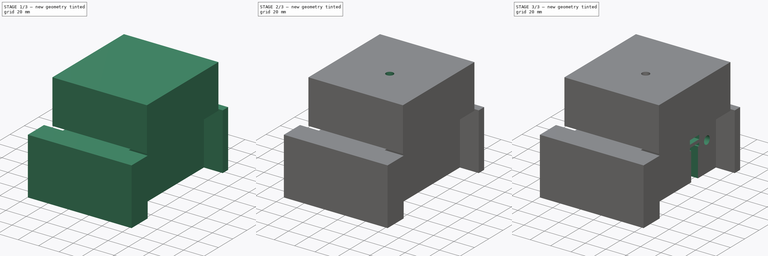
[diagram: build sequence overview — one tinted view per stage of 3, left to right]
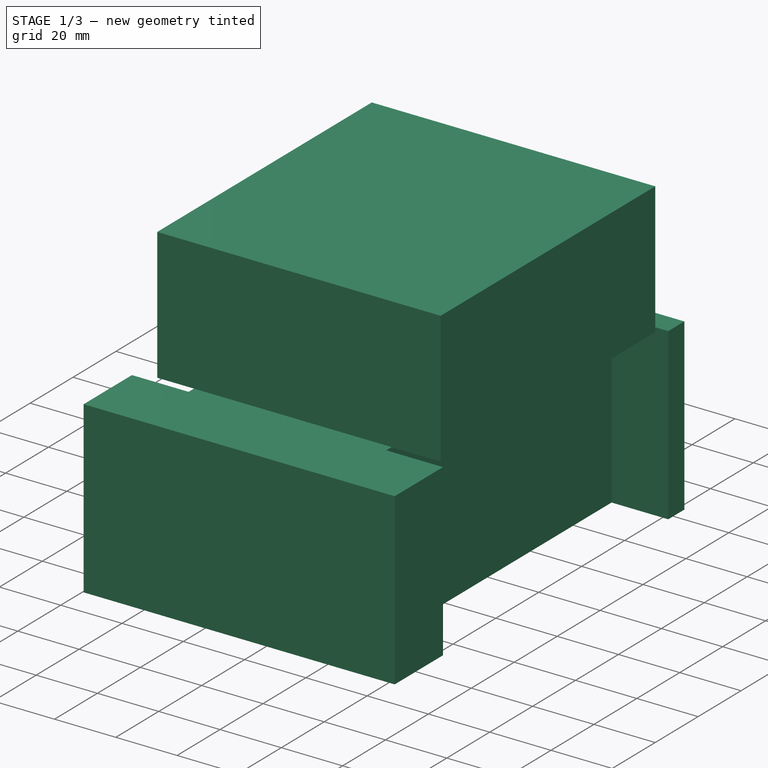
[diagram: stage 1 of 3 — iso view after this stage's code; geometry added in this stage tinted green]
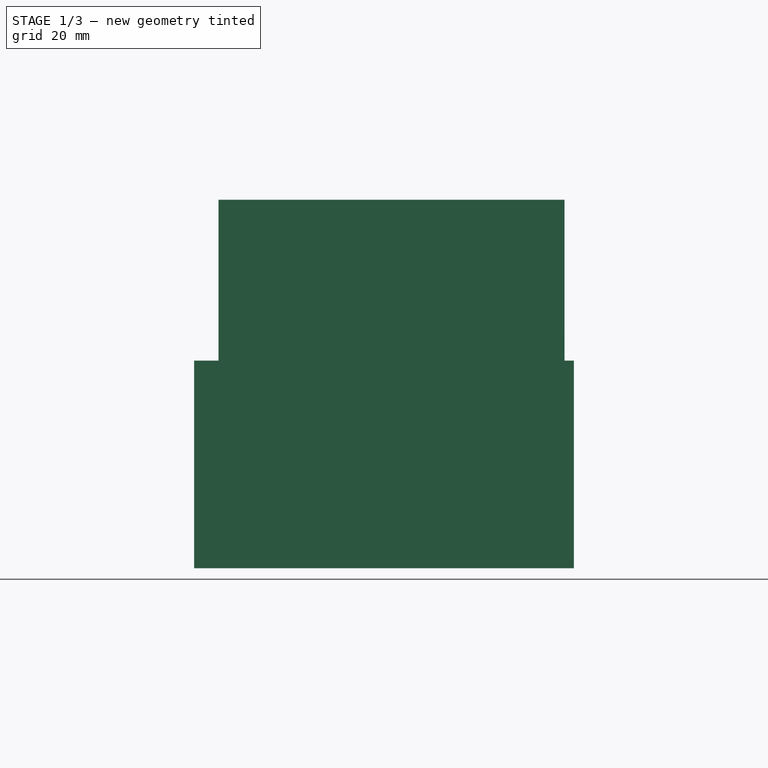
[diagram: stage 1 of 3 — front view after this stage's code; geometry added in this stage tinted green]
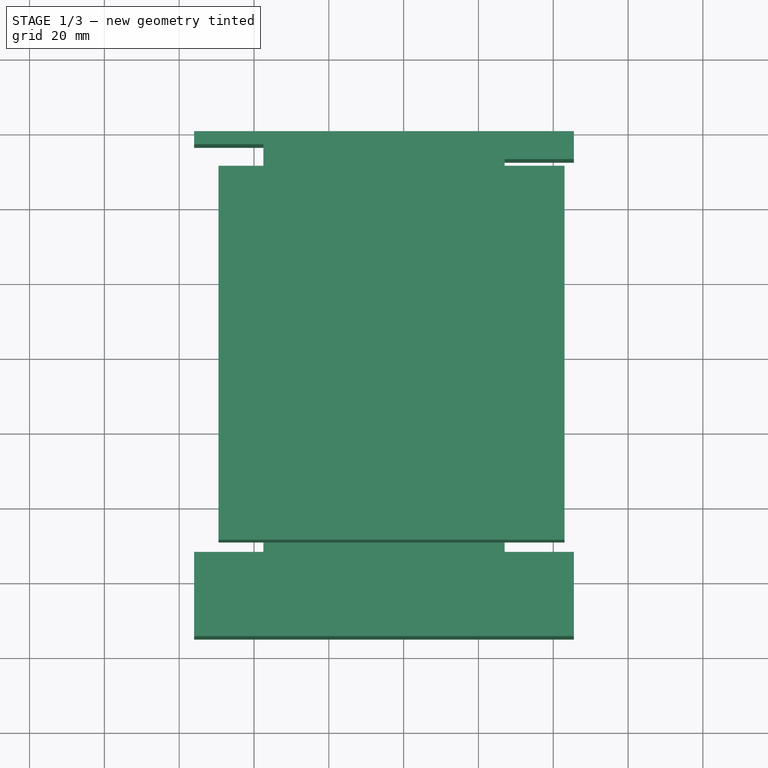
[diagram: stage 1 of 3 — top view after this stage's code; geometry added in this stage tinted green]
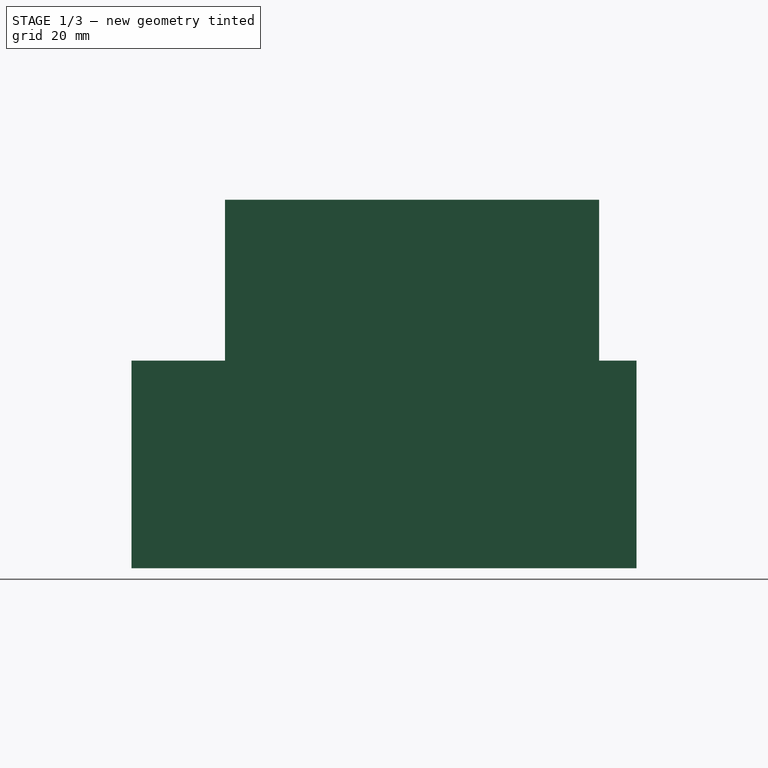
[diagram: stage 1 of 3 — right view after this stage's code; geometry added in this stage tinted green]
FCSTD DOCUMENT  (FreeCAD 0.20R29410 (Git))
Label: PrintHeadBoundaries
License: Creative Commons Attribution
LicenseURL: http://creativecommons.org/licenses/by/4.0/
objects: Sketcher::SketchObject×5, PartDesign::Pocket×3, PartDesign::Pad×2, PartDesign::Line×2, PartDesign::Plane×1, PartDesign::Body×1
note: 19 computed .brp shape members not serialized (recipe doc carries the construction recipe); baked Part::Feature solids carry a one-line shape summary decoded from their .brp

FEATURE [Sketcher::SketchObject] Sketch
  FullyConstrained = true
  MapMode = 5
  Placement = pos=(0,0,0) rot=(1,0,0;1.5708rad)
  Support = -> [XZ_Plane001]
  sketch-geometry (8):
    g0: LineSegment StartX=-37.5 StartY=-28.5 StartZ=0 EndX=27 EndY=-28.5 EndZ=0
    g1: LineSegment StartX=27 StartY=-28.5 StartZ=0 EndX=27 EndY=26.5 EndZ=0
    g2: LineSegment StartX=27 StartY=26.5 StartZ=0 EndX=43 EndY=26.5 EndZ=0
    g3: LineSegment StartX=43 StartY=26.5 StartZ=0 EndX=43 EndY=69.5 EndZ=0
    g4: LineSegment StartX=43 StartY=69.5 StartZ=0 EndX=-49.5 EndY=69.5 EndZ=0
    g5: LineSegment StartX=-49.5 StartY=69.5 StartZ=0 EndX=-49.5 EndY=26.5 EndZ=0
    g6: LineSegment StartX=-49.5 StartY=26.5 StartZ=0 EndX=-37.5 EndY=26.5 EndZ=0
    g7: LineSegment StartX=-37.5 StartY=26.5 StartZ=0 EndX=-37.5 EndY=-28.5 EndZ=0
  constraints (24):
    c: Horizontal(g0)
    c: Coincident(g0,g1)
    c: Vertical(g1)
    c: Coincident(g1,g2)
    c: Horizontal(g2)
    c: Coincident(g2,g3)
    c: Vertical(g3)
    c: Coincident(g3,g4)
    c: Horizontal(g4)
    c: Coincident(g4,g5)
    c: Vertical(g5)
    c: Coincident(g5,g6)
    c: Coincident(g6,g7)
    c: Coincident(g7,g0)
    c: Vertical(g7)
    c: DistanceY(g0,g-1) = 28.5
    c: Horizontal(g6)
    c: DistanceY(g0,g5) = 55
    c: Horizontal(g6,g1)
    c: DistanceY(g0,g3) = 98
    c: DistanceX(g0,g0) = 64.5
    c: DistanceX(g-1,g0) = 27
    c: DistanceX(g5,g0) = 12
    c: DistanceX(g0,g2) = 16
FEATURE [PartDesign::Pad] Pad
  Direction = (0,-1,-2e-16)
  Length = 100
  Length2 = 10
  Midplane = true
  Placement = pos=(0,0,0) rot=(1,0,0;1.5708rad)
  Profile = -> Sketch
  ReferenceAxis = -> Sketch [N_Axis]
  Type = 0
FEATURE [Sketcher::SketchObject] Sketch001
  AttachmentOffset = pos=(0,0,-28.5) rot=(0,0,1;0rad)
  ExternalGeometry = -> [Sketch]
  FullyConstrained = true
  MapMode = 5
  Placement = pos=(0,0,-28.5) rot=(0,0,1;0rad)
  Support = -> [XY_Plane001]
  sketch-geometry (1):
    g0: Circle CenterX=0 CenterY=-7 CenterZ=0 NormalX=0 NormalY=0 NormalZ=1 AngleXU=0 Radius=3.65
  constraints (3):
    c: DistanceY(g0,g-1) = 7
    c: Diameter(g0) = 7.3
    c: PointOnObject(g0,g-2)
FEATURE [Sketcher::SketchObject] Sketch002
  FullyConstrained = true
  MapMode = 5
  Placement = pos=(0,0,0) rot=(0.57735,0.57735,0.57735;2.0944rad)
  Support = -> [YZ_Plane001]
  sketch-geometry (6):
    g0: Circle CenterX=-40 CenterY=0 CenterZ=0 NormalX=0 NormalY=0 NormalZ=1 AngleXU=0 Radius=4
    g1: Circle CenterX=40 CenterY=0 CenterZ=0 NormalX=0 NormalY=0 NormalZ=1 AngleXU=0 Radius=4
    g2: LineSegment StartX=18 StartY=-0.8 StartZ=0 EndX=27.5 EndY=-0.8 EndZ=0
    g3: LineSegment StartX=27.5 StartY=-0.8 StartZ=0 EndX=27.5 EndY=-30.8 EndZ=0
    g4: LineSegment StartX=27.5 StartY=-30.8 StartZ=0 EndX=18 EndY=-30.8 EndZ=0
    g5: LineSegment StartX=18 StartY=-30.8 StartZ=0 EndX=18 EndY=-0.8 EndZ=0
  constraints (17):
    c: PointOnObject(g0,g-1)
    c: Symmetric(g0,g1,g-2)
    c: Equal(g0,g1)
    c: Diameter(g1) = 8
    c: DistanceX(g0,g1) = 80
    c: Coincident(g2,g3)
    c: Coincident(g3,g4)
    c: Coincident(g4,g5)
    c: Coincident(g5,g2)
    c: Horizontal(g2)
    c: Horizontal(g4)
    c: Vertical(g3)
    c: Vertical(g5)
    c: DistanceX(g-1,g2) = 18
    c: DistanceY(g2,g-1) = 0.8
    c: DistanceX(g2,g2) = 9.5
    c: DistanceY(g3,g3) = 30
FEATURE [Sketcher::SketchObject] Sketch003
  FullyConstrained = true
  MapMode = 5
  Support = -> [XY_Plane001]
  sketch-geometry (12):
    g0: LineSegment StartX=-56 StartY=-52.5 StartZ=0 EndX=-56 EndY=-75 EndZ=0
    g1: LineSegment StartX=-56 StartY=-75 StartZ=0 EndX=45.5 EndY=-75 EndZ=0
    g2: LineSegment StartX=45.5 StartY=-75 StartZ=0 EndX=45.5 EndY=-52.5 EndZ=0
    g3: LineSegment StartX=45.5 StartY=-52.5 StartZ=0 EndX=27 EndY=-52.5 EndZ=0
    g4: LineSegment StartX=27 StartY=-52.5 StartZ=0 EndX=27 EndY=52.5 EndZ=0
    g5: LineSegment StartX=27 StartY=52.5 StartZ=0 EndX=45.5 EndY=52.5 EndZ=0
    g6: LineSegment StartX=45.5 StartY=52.5 StartZ=0 EndX=45.5 EndY=60 EndZ=0
    g7: LineSegment StartX=45.5 StartY=60 StartZ=0 EndX=-56 EndY=60 EndZ=0
    g8: LineSegment StartX=-56 StartY=60 StartZ=0 EndX=-56 EndY=56.5 EndZ=0
    g9: LineSegment StartX=-56 StartY=56.5 StartZ=0 EndX=-37.5 EndY=56.5 EndZ=0
    g10: LineSegment StartX=-37.5 StartY=56.5 StartZ=0 EndX=-37.5 EndY=-52.5 EndZ=0
    g11: LineSegment StartX=-37.5 StartY=-52.5 StartZ=0 EndX=-56 EndY=-52.5 EndZ=0
  constraints (36):
    c: Vertical(g0)
    c: Coincident(g0,g1)
    c: Horizontal(g1)
    c: Coincident(g1,g2)
    c: Vertical(g2)
    c: Coincident(g2,g3)
    c: Horizontal(g3)
    c: Coincident(g3,g4)
    c: Vertical(g4)
    c: Coincident(g4,g5)
    c: Horizontal(g5)
    c: Coincident(g5,g6)
    c: Coincident(g6,g7)
    c: Horizontal(g7)
    c: Coincident(g7,g8)
    c: Vertical(g8)
    c: Coincident(g8,g9)
    c: Horizontal(g9)
    c: Coincident(g9,g10)
    c: Vertical(g10)
    c: Coincident(g10,g11)
    c: Coincident(g11,g0)
    c: Horizontal(g11)
    c: DistanceY(g0,g-1) = 52.5
    c: DistanceX(g10,g3) = 64.5
    c: DistanceX(g-1,g3) = 27
    c: DistanceY(g-1,g8) = 56.5
    c: DistanceY(g8,g8) = 3.5
    c: Vertical(g6)
    c: DistanceX(g0,g-1) = 56
    c: Equal(g11,g9)
    c: DistanceY(g0,g-1) = 75
    c: DistanceY(g2,g-1) = 52.5
    c: Vertical(g2,g5)
    c: DistanceY(g-1,g5) = 52.5
    c: Equal(g11,g3)
FEATURE [PartDesign::Pad] Pad001
  BaseFeature = -> Pad
  Direction = (0,0,1)
  Length = 26.5
  Length2 = 29
  Placement = pos=(0,0,0) rot=(1,0,0;1.5708rad)
  Profile = -> Sketch003
  ReferenceAxis = -> Sketch003 [N_Axis]
  Type = 4
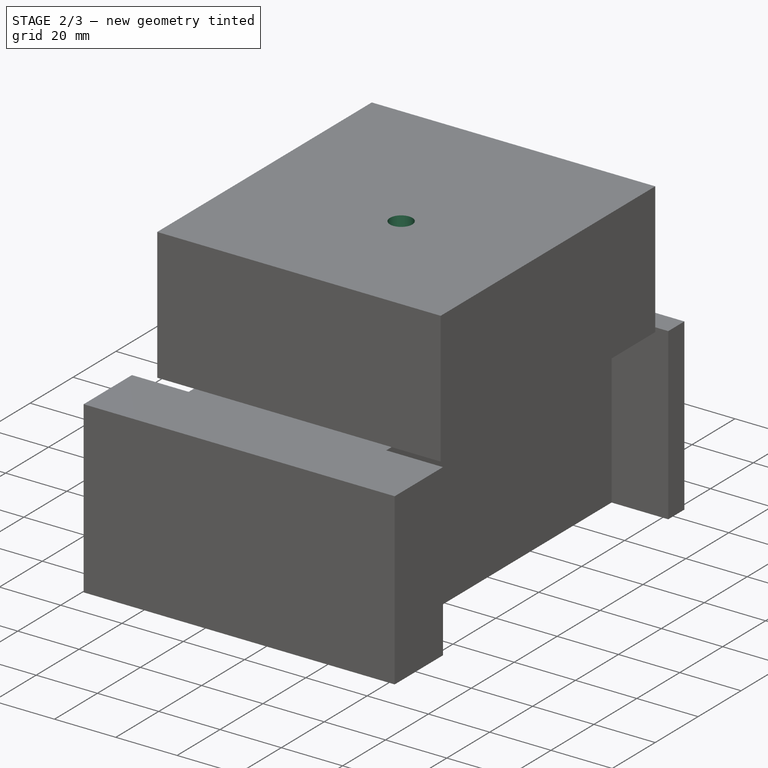
[diagram: stage 2 of 3 — iso view after this stage's code; geometry added in this stage tinted green]
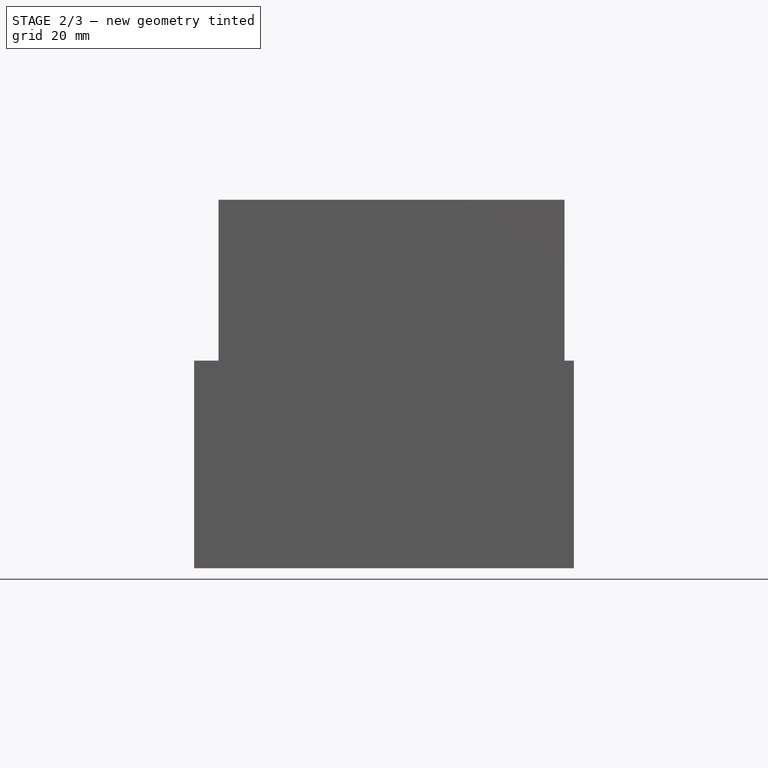
[diagram: stage 2 of 3 — front view after this stage's code; geometry added in this stage tinted green]
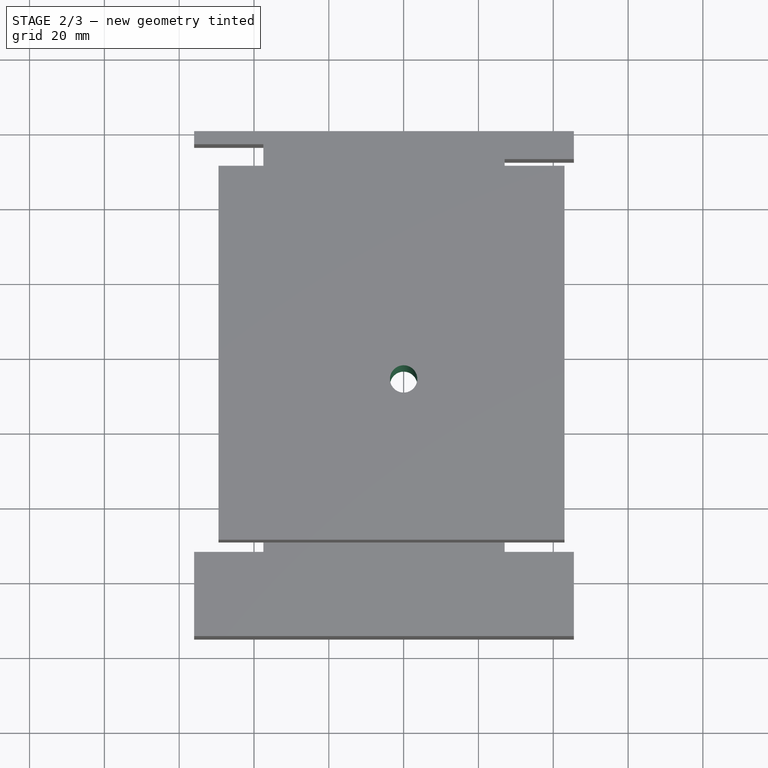
[diagram: stage 2 of 3 — top view after this stage's code; geometry added in this stage tinted green]
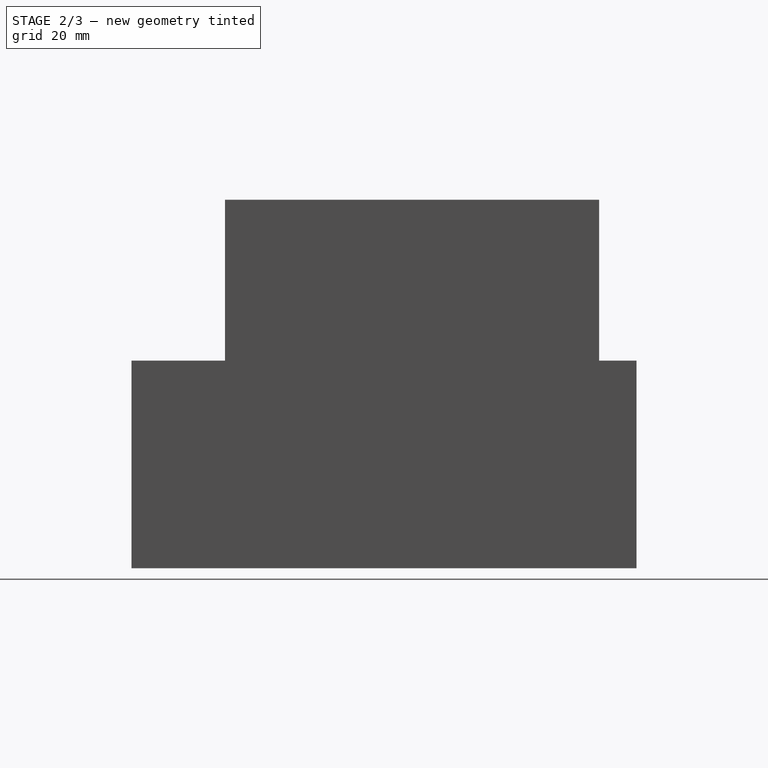
[diagram: stage 2 of 3 — right view after this stage's code; geometry added in this stage tinted green]
FEATURE [PartDesign::Pocket] Pocket
  BaseFeature = -> Pad001
  Direction = (0,0,-1)
  Length = 5
  Length2 = 5
  Midplane = true
  Placement = pos=(0,0,0) rot=(1,0,0;1.5708rad)
  Profile = -> Sketch001
  ReferenceAxis = -> Sketch001 [N_Axis]
  Type = 1
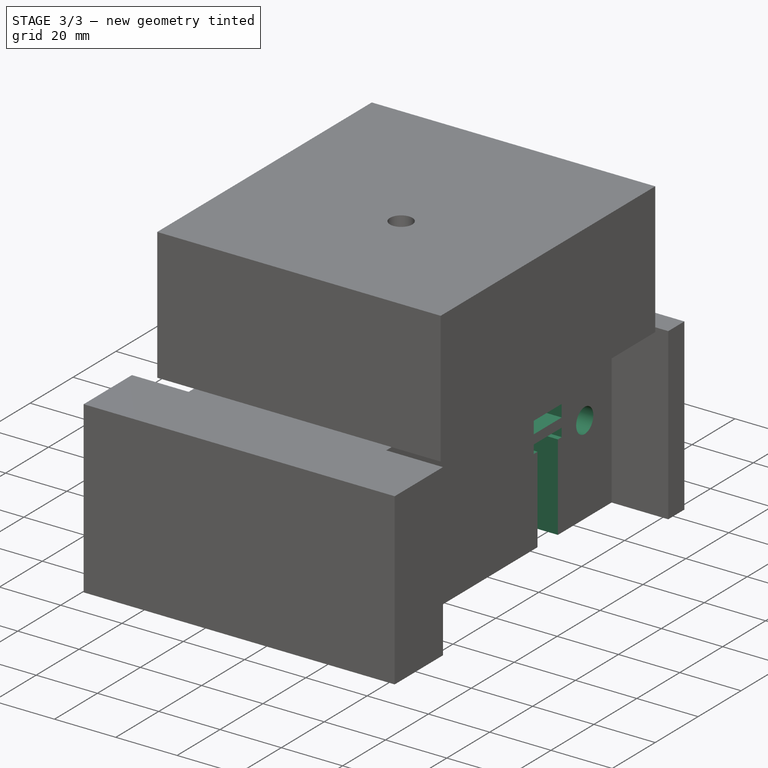
[diagram: stage 3 of 3 — iso view after this stage's code; geometry added in this stage tinted green]
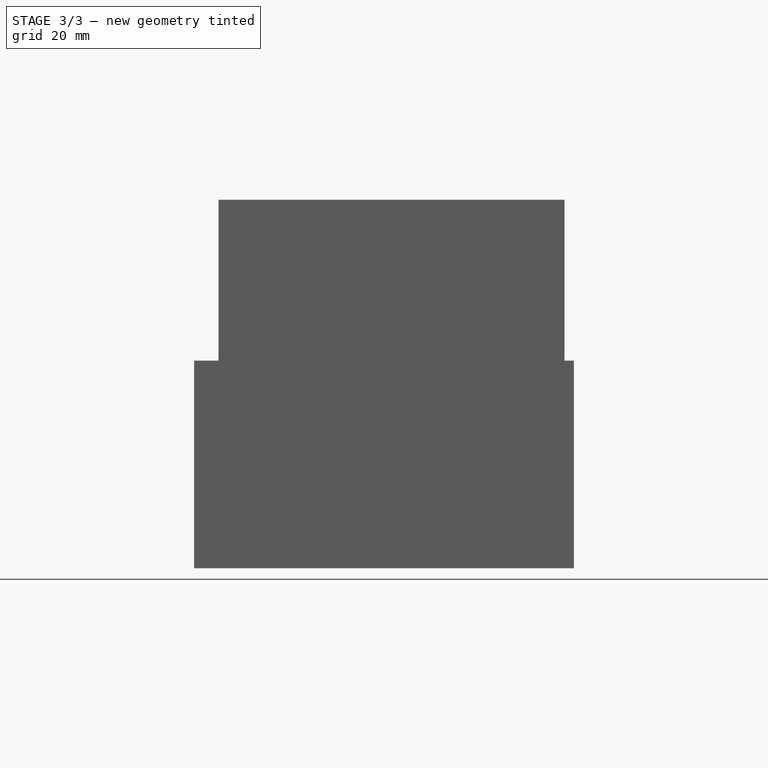
[diagram: stage 3 of 3 — front view after this stage's code; geometry added in this stage tinted green]
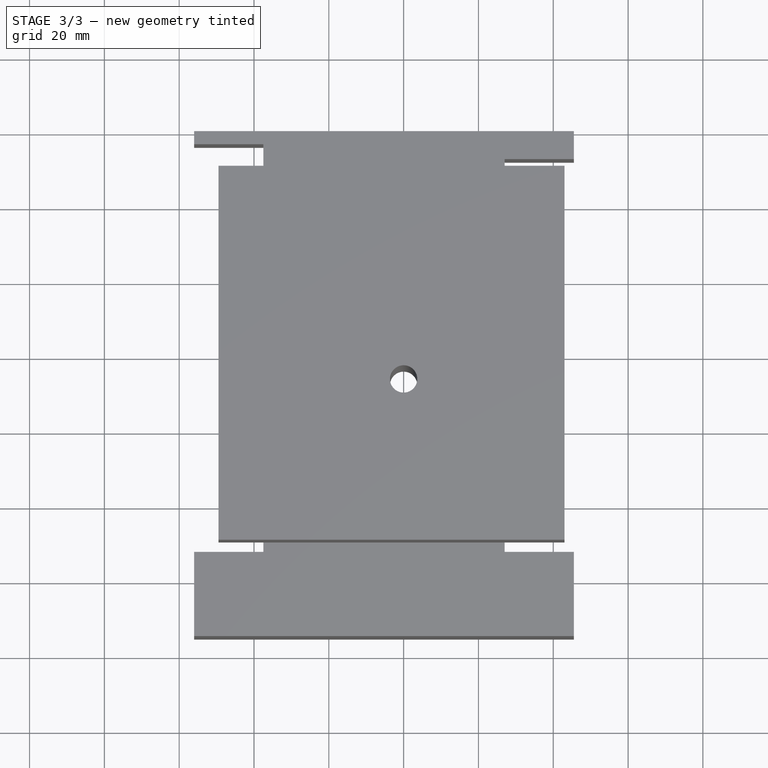
[diagram: stage 3 of 3 — top view after this stage's code; geometry added in this stage tinted green]
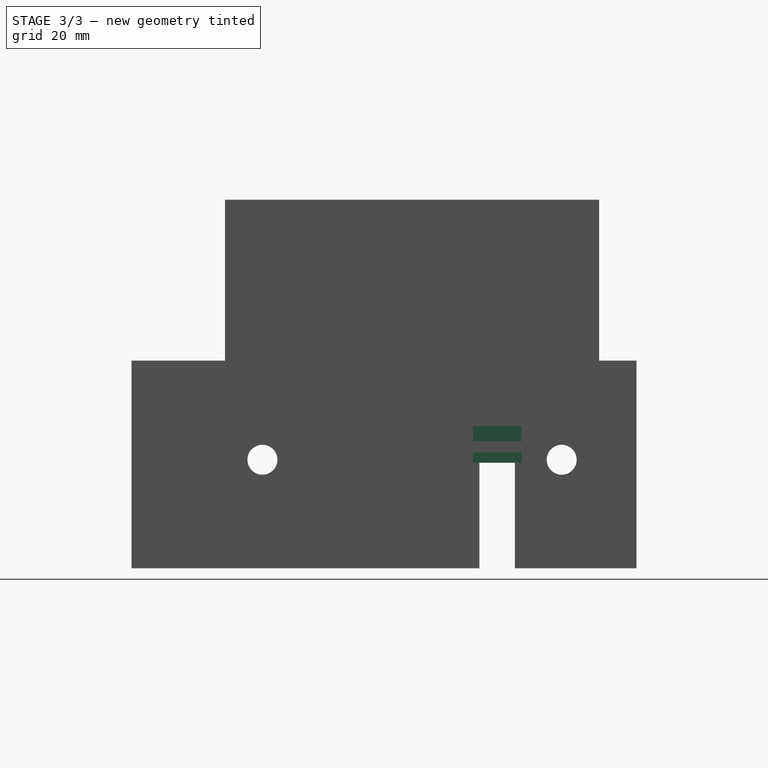
[diagram: stage 3 of 3 — right view after this stage's code; geometry added in this stage tinted green]
FEATURE [PartDesign::Pocket] Pocket001
  BaseFeature = -> Pocket
  Direction = (-1,2e-16,-3e-16)
  Length = 5
  Length2 = 5
  Midplane = true
  Placement = pos=(0,0,0) rot=(1,0,0;1.5708rad)
  Profile = -> Sketch002
  ReferenceAxis = -> Sketch002 [N_Axis]
  Type = 1
FEATURE [PartDesign::Line] DatumLine
  AttacherType = Attacher::AttachEngineLine
  Length = 20
  MapMode = 44
  Placement = pos=(7.1e-15,22.75,-0.8) rot=(0.57735,0.57735,0.57735;2.0944rad)
  ResizeMode = 0
  Support = -> [Pocket001]
FEATURE [PartDesign::Line] DatumLine001
  AttacherType = Attacher::AttachEngineLine
  Length = 20
  MapMode = 44
  Placement = pos=(5.3e-15,22.75,-28.5) rot=(0.57735,0.57735,0.57735;2.0944rad)
  ResizeMode = 0
  Support = -> [Pocket001]
FEATURE [PartDesign::Plane] DatumPlane
  Length = 121.498
  MapMode = 13
  Placement = pos=(0.333333,22.75,-10.0333) rot=(0,0.707107,0.707107;3.14159rad)
  ResizeMode = 0
  Support = -> [DatumLine,DatumLine001]
  Width = 118.498
FEATURE [Sketcher::SketchObject] Sketch004
  FullyConstrained = true
  MapMode = 5
  Placement = pos=(0.333333,22.75,-10.0333) rot=(0,0.707107,0.707107;3.14159rad)
  Support = -> [DatumPlane]
  sketch-geometry (16):
    g0: LineSegment StartX=-28.5 StartY=19 StartZ=0 EndX=-13.5 EndY=19 EndZ=0
    g1: LineSegment StartX=-13.5 StartY=19 StartZ=0 EndX=-13.5 EndY=9.2 EndZ=0
    g2: LineSegment StartX=-13.5 StartY=9.2 StartZ=0 EndX=-28.5 EndY=9.2 EndZ=0
    g3: LineSegment StartX=-28.5 StartY=9.2 StartZ=0 EndX=-28.5 EndY=12 EndZ=0
    g4: LineSegment StartX=-28.5 StartY=12 StartZ=0 EndX=-18.5 EndY=12 EndZ=0
    g5: LineSegment StartX=-18.5 StartY=12 StartZ=0 EndX=-18.5 EndY=15 EndZ=0
    g6: LineSegment StartX=-18.5 StartY=15 StartZ=0 EndX=-28.5 EndY=15 EndZ=0
    g7: LineSegment StartX=-28.5 StartY=15 StartZ=0 EndX=-28.5 EndY=19 EndZ=0
    g8: LineSegment StartX=38.5 StartY=19 StartZ=0 EndX=8.5 EndY=19 EndZ=0
    g9: LineSegment StartX=8.5 StartY=19 StartZ=0 EndX=8.5 EndY=9.2 EndZ=0
    g10: LineSegment StartX=8.5 StartY=9.2 StartZ=0 EndX=38.5 EndY=9.2 EndZ=0
    g11: LineSegment StartX=38.5 StartY=9.2 StartZ=0 EndX=38.5 EndY=12 EndZ=0
    g12: LineSegment StartX=38.5 StartY=12 StartZ=0 EndX=19.3 EndY=12 EndZ=0
    g13: LineSegment StartX=19.3 StartY=12 StartZ=0 EndX=19.3 EndY=15 EndZ=0
    g14: LineSegment StartX=19.3 StartY=15 StartZ=0 EndX=38.5 EndY=15 EndZ=0
    g15: LineSegment StartX=38.5 StartY=15 StartZ=0 EndX=38.5 EndY=19 EndZ=0
  constraints (48):
    c: Horizontal(g0)
    c: Coincident(g0,g1)
    c: Vertical(g1)
    c: Coincident(g1,g2)
    c: Horizontal(g2)
    c: Coincident(g2,g3)
    c: Vertical(g3)
    c: Coincident(g3,g4)
    c: Horizontal(g4)
    c: Coincident(g4,g5)
    c: Vertical(g5)
    c: Coincident(g5,g6)
    c: Horizontal(g6)
    c: Coincident(g6,g7)
    c: Coincident(g7,g0)
    c: Vertical(g7)
    c: Vertical(g3,g6)
    c: DistanceX(g0,g0) = 15
    c: DistanceY(g5,g0) = 4
    c: DistanceY(g5,g5) = 3
    c: DistanceX(g1,g-1) = 13.5
    c: DistanceX(g4,g1) = 5
    c: Horizontal(g8)
    c: Coincident(g8,g9)
    c: Vertical(g9)
    c: Coincident(g9,g10)
    c: Horizontal(g10)
    c: Coincident(g10,g11)
    c: Vertical(g11)
    c: Coincident(g11,g12)
    c: Horizontal(g12)
    c: Coincident(g12,g13)
    c: Coincident(g13,g14)
    c: Horizontal(g14)
    c: Coincident(g14,g15)
    c: Vertical(g15)
    c: Coincident(g8,g15)
    c: Horizontal(g0,g8)
    c: Horizontal(g1,g9)
    c: Horizontal(g4,g12)
    c: Horizontal(g13,g5)
    c: Vertical(g13)
    c: DistanceX(g-1,g9) = 8.5
    c: DistanceX(g10,g10) = 30
    c: Vertical(g11,g14)
    c: DistanceX(g8,g13) = 10.8
    c: DistanceY(g-1,g0) = 19
    c: DistanceY(g2,g0) = 9.8
FEATURE [PartDesign::Pocket] Pocket002
  BaseFeature = -> Pocket001
  Direction = (0,-1,2e-16)
  Length = 13
  Length2 = 5
  Midplane = true
  Placement = pos=(0,0,0) rot=(1,0,0;1.5708rad)
  Profile = -> Sketch004
  ReferenceAxis = -> Sketch004 [N_Axis]
  Type = 0
FEATURE [PartDesign::Body] Body  label="Boundaries"
  Group = -> [Sketch,Pad,Sketch001,Sketch002,Sketch003,Pad001,Pocket,Pocket001,DatumLine,DatumLine001,DatumPlane,Sketch004,Pocket002]
  Origin = -> Origin001
  Tip = -> Pocket002
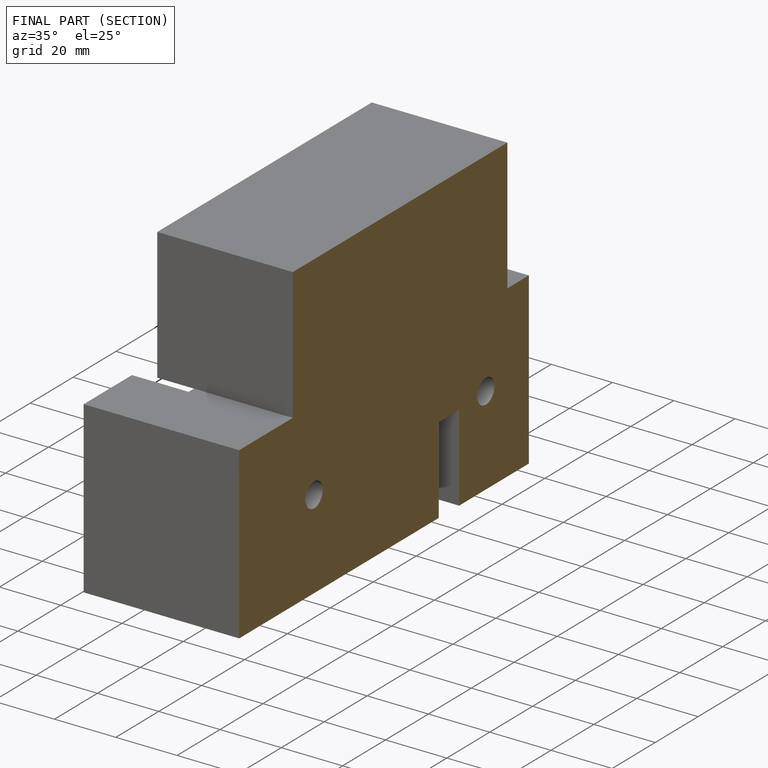
[diagram: finished part — half-section view (interior)]
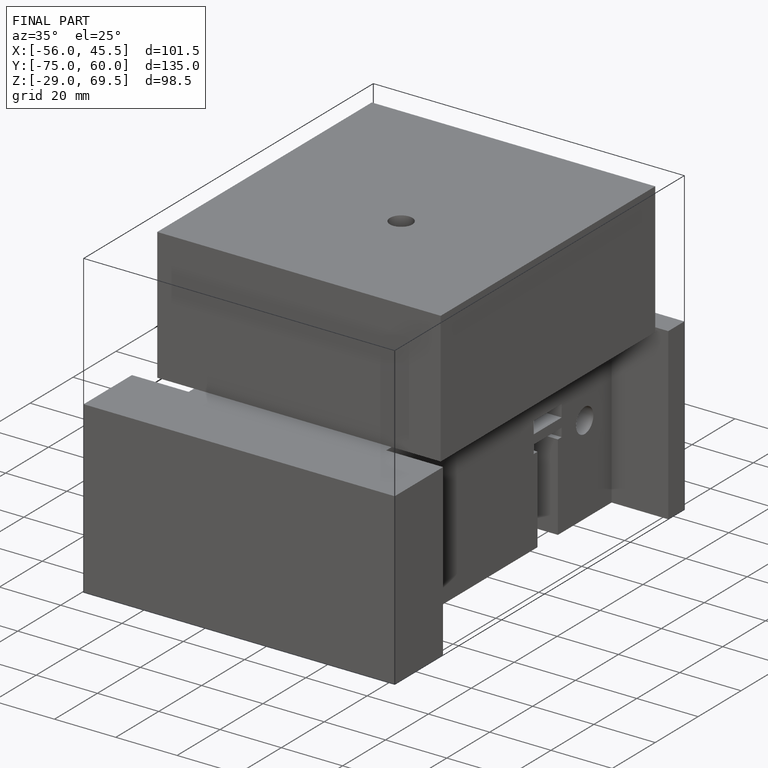
[diagram: finished part — iso view with bounding-box wireframe]
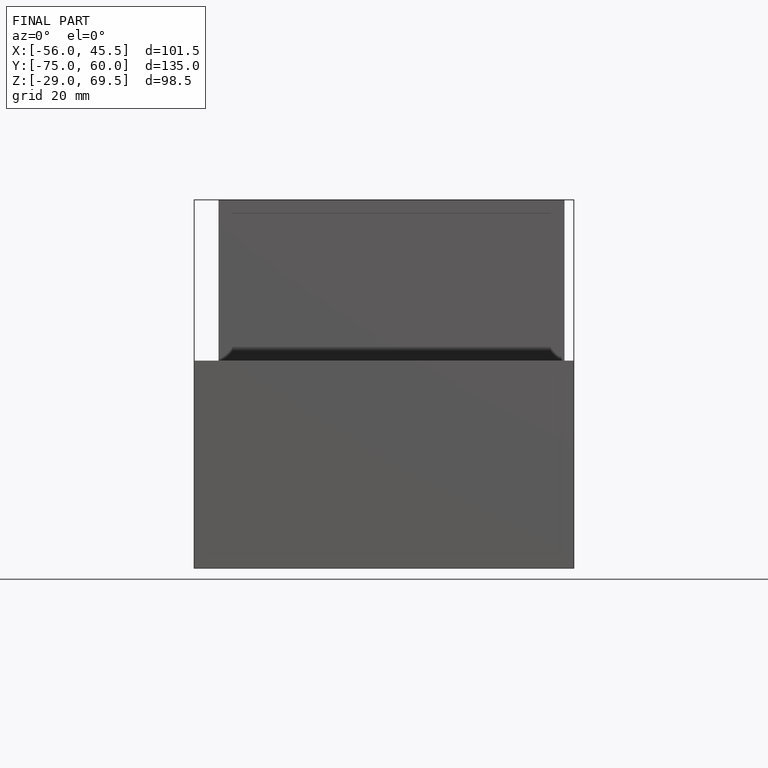
[diagram: finished part — front view with bounding-box wireframe]
